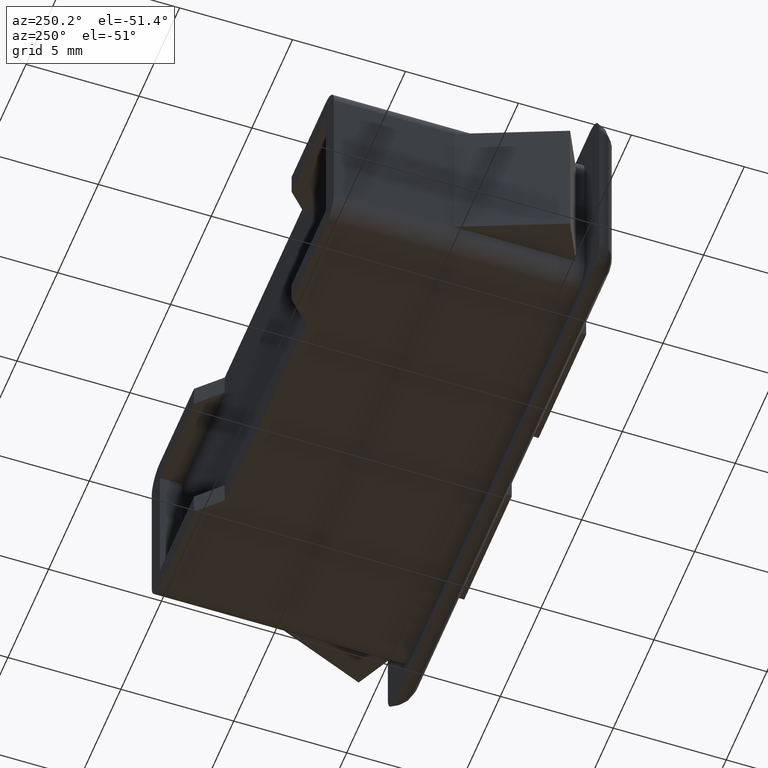
[diagram: clean part render]
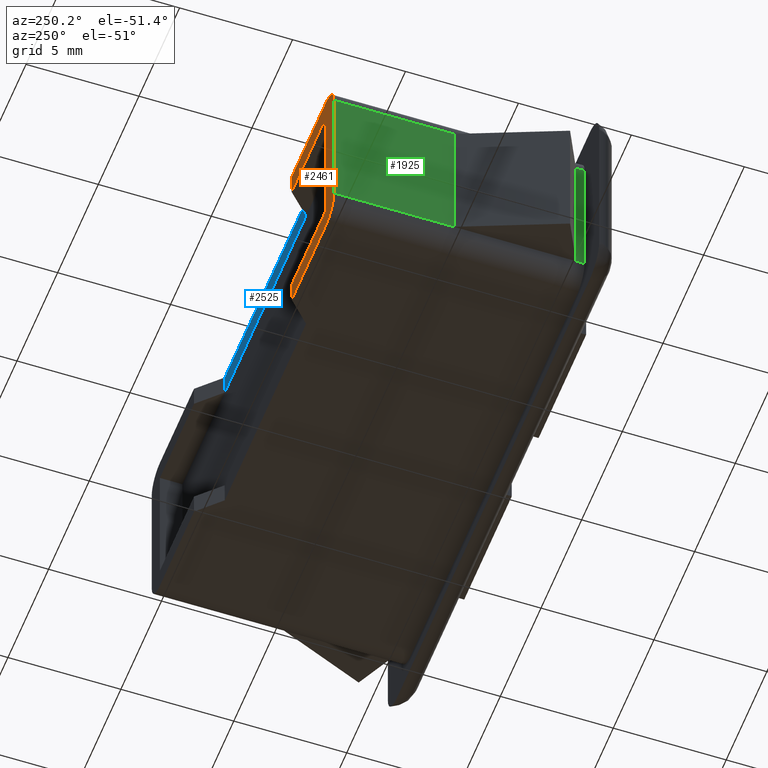
[diagram: same view with three faces highlighted in distinct colors, each labeled with its STEP entity id]
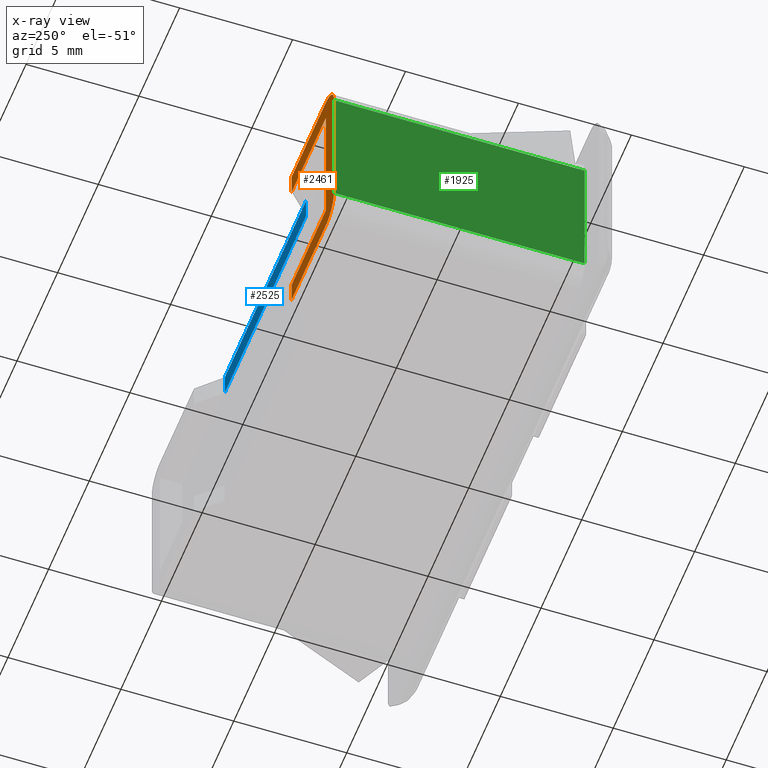
[diagram: x-ray of the same camera — body ghosted, the three highlighted faces saturated]
A machine part, auxiliary view with three faces highlighted in distinct colors.
The next image is the same camera in x-ray (body ghosted, the three faces saturated) — at least one of them is partly hidden behind the body in this view.
Their STEP definitions:

[orange] entity #2461 — the highlighted face is a freeform B-spline surface patch.
#1373=CARTESIAN_POINT('',(-11.200001000000000,0.0,-3.099999000000000));
#1374=VERTEX_POINT('',#1373);
#1380=CARTESIAN_POINT('',(-10.200001000000000,0.0,-4.099999000000000));
#1381=VERTEX_POINT('',#1380);
#1382=CARTESIAN_POINT('',(-10.200001000000000,0.0,-4.099999000000000));
#1383=CARTESIAN_POINT('',(-11.200001000000004,0.0,-4.099999000000000));
#1384=CARTESIAN_POINT('',(-11.200001000000000,0.0,-3.099999000000000));
#1392=(BOUNDED_CURVE()B_SPLINE_CURVE(2,(#1382,#1383,#1384),.UNSPECIFIED.,.F.,.U.)CURVE()GEOMETRIC_REPRESENTATION_ITEM()QUASI_UNIFORM_CURVE()RATIONAL_B_SPLINE_CURVE((1.0,0.707106781186548,1.0))REPRESENTATION_ITEM(''));
#1393=EDGE_CURVE('',#1381,#1374,#1392,.T.);
#1434=CARTESIAN_POINT('',(-10.200001000000000,0.0,4.100006000000045));
#1435=VERTEX_POINT('',#1434);
#1441=CARTESIAN_POINT('',(-11.200001000000000,0.0,3.100006000000045));
#1442=VERTEX_POINT('',#1441);
#1443=CARTESIAN_POINT('',(-11.200001000000000,0.0,3.100006000000045));
#1444=CARTESIAN_POINT('',(-11.200001000000004,0.0,4.100006000000045));
#1445=CARTESIAN_POINT('',(-10.200001000000000,0.0,4.100006000000045));
#1453=(BOUNDED_CURVE()B_SPLINE_CURVE(2,(#1443,#1444,#1445),.UNSPECIFIED.,.F.,.U.)CURVE()GEOMETRIC_REPRESENTATION_ITEM()QUASI_UNIFORM_CURVE()RATIONAL_B_SPLINE_CURVE((1.0,0.707106781186548,1.0))REPRESENTATION_ITEM(''));
#1454=EDGE_CURVE('',#1442,#1435,#1453,.T.);
#1591=CARTESIAN_POINT('',(-10.199997000000099,0.0,3.099998000000000));
#1592=VERTEX_POINT('',#1591);
#1593=CARTESIAN_POINT('',(-10.199997000000099,0.0,-3.099999000000000));
#1594=VERTEX_POINT('',#1593);
#1595=CARTESIAN_POINT('',(-10.199997000000099,0.0,3.099998000000000));
#1596=CARTESIAN_POINT('',(-10.199997000000099,0.0,-3.099999000000000));
#1597=QUASI_UNIFORM_CURVE('',1,(#1595,#1596),.UNSPECIFIED.,.F.,.U.);
#1598=EDGE_CURVE('',#1592,#1594,#1597,.T.);
#1679=CARTESIAN_POINT('',(-6.000004000000000,0.0,-3.099999000000000));
#1680=VERTEX_POINT('',#1679);
#1686=CARTESIAN_POINT('',(-10.199997000000099,0.0,-3.099999000000000));
#1687=CARTESIAN_POINT('',(-6.000004000000000,0.0,-3.099999000000000));
#1688=QUASI_UNIFORM_CURVE('',1,(#1686,#1687),.UNSPECIFIED.,.F.,.U.);
#1689=EDGE_CURVE('',#1594,#1680,#1688,.T.);
#1732=CARTESIAN_POINT('',(-6.000004000000000,0.0,3.099998000000000));
#1733=VERTEX_POINT('',#1732);
#1734=CARTESIAN_POINT('',(-10.199997000000099,0.0,3.099998000000000));
#1735=CARTESIAN_POINT('',(-6.000004000000000,0.0,3.099998000000000));
#1736=QUASI_UNIFORM_CURVE('',1,(#1734,#1735),.UNSPECIFIED.,.F.,.U.);
#1737=EDGE_CURVE('',#1592,#1733,#1736,.T.);
#1917=CARTESIAN_POINT('',(-11.200001000000000,0.0,-3.099999000000000));
#1918=CARTESIAN_POINT('',(-11.200001000000000,0.0,3.100006000000045));
#1919=QUASI_UNIFORM_CURVE('',1,(#1917,#1918),.UNSPECIFIED.,.F.,.U.);
#1920=EDGE_CURVE('',#1374,#1442,#1919,.T.);
#1945=CARTESIAN_POINT('',(-6.000004000000000,0.0,-4.099999000000000));
#1946=VERTEX_POINT('',#1945);
#1947=CARTESIAN_POINT('',(-10.200001000000000,0.0,-4.099999000000000));
#1948=CARTESIAN_POINT('',(-6.000004000000000,0.0,-4.099999000000000));
#1949=QUASI_UNIFORM_CURVE('',1,(#1947,#1948),.UNSPECIFIED.,.F.,.U.);
#1950=EDGE_CURVE('',#1381,#1946,#1949,.T.);
#2006=CARTESIAN_POINT('',(-6.000004000000000,0.0,4.100006000000045));
#2007=VERTEX_POINT('',#2006);
#2013=CARTESIAN_POINT('',(-10.200001000000000,0.0,4.100006000000045));
#2014=CARTESIAN_POINT('',(-6.000004000000000,0.0,4.100006000000045));
#2015=QUASI_UNIFORM_CURVE('',1,(#2013,#2014),.UNSPECIFIED.,.F.,.U.);
#2016=EDGE_CURVE('',#1435,#2007,#2015,.T.);
#2436=CARTESIAN_POINT('',(-11.459740596002140,0.0,4.509596387808406));
#2437=CARTESIAN_POINT('',(-11.459740596002140,0.0,-4.509589461122118));
#2438=CARTESIAN_POINT('',(-5.740264032065091,0.0,4.509596387808406));
#2439=CARTESIAN_POINT('',(-5.740264032065091,0.0,-4.509589461122118));
#2440=B_SPLINE_SURFACE_WITH_KNOTS('',1,1,((#2436,#2438),(#2437,#2439)),.UNSPECIFIED.,.F.,.F.,.U.,(2,2),(2,2),(0.0,9.019185848930524),(0.0,5.719476563937049),.UNSPECIFIED.);
#2441=ORIENTED_EDGE('',*,*,#1920,.T.);
#2442=ORIENTED_EDGE('',*,*,#1454,.T.);
#2443=ORIENTED_EDGE('',*,*,#2016,.T.);
#2444=CARTESIAN_POINT('',(-6.000004000000000,0.0,3.099998000000000));
#2445=CARTESIAN_POINT('',(-6.000004000000000,0.0,4.100006000000045));
#2446=QUASI_UNIFORM_CURVE('',1,(#2444,#2445),.UNSPECIFIED.,.F.,.U.);
#2447=EDGE_CURVE('',#1733,#2007,#2446,.T.);
#2448=ORIENTED_EDGE('',*,*,#2447,.F.);
#2449=ORIENTED_EDGE('',*,*,#1737,.F.);
#2450=ORIENTED_EDGE('',*,*,#1598,.T.);
#2451=ORIENTED_EDGE('',*,*,#1689,.T.);
#2452=CARTESIAN_POINT('',(-6.000004000000000,0.0,-4.099999000000000));
#2453=CARTESIAN_POINT('',(-6.000004000000000,0.0,-3.099999000000000));
#2454=QUASI_UNIFORM_CURVE('',1,(#2452,#2453),.UNSPECIFIED.,.F.,.U.);
#2455=EDGE_CURVE('',#1946,#1680,#2454,.T.);
#2456=ORIENTED_EDGE('',*,*,#2455,.F.);
#2457=ORIENTED_EDGE('',*,*,#1950,.F.);
#2458=ORIENTED_EDGE('',*,*,#1393,.T.);
#2459=EDGE_LOOP('',(#2441,#2442,#2443,#2448,#2449,#2450,#2451,#2456,#2457,#2458));
#2460=FACE_OUTER_BOUND('',#2459,.T.);
#2461=ADVANCED_FACE('',(#2460),#2440,.F.);

[blue] entity #2525 — the highlighted face is a freeform B-spline surface patch.
#1711=CARTESIAN_POINT('',(5.0,-1.0,3.099998000000050));
#1712=VERTEX_POINT('',#1711);
#1739=CARTESIAN_POINT('',(-5.000004000000000,-1.0,3.099998000000050));
#1740=VERTEX_POINT('',#1739);
#1746=CARTESIAN_POINT('',(-5.000004000000000,-1.0,3.099998000000050));
#1747=CARTESIAN_POINT('',(5.0,-1.0,3.099998000000050));
#1748=QUASI_UNIFORM_CURVE('',1,(#1746,#1747),.UNSPECIFIED.,.F.,.U.);
#1749=EDGE_CURVE('',#1740,#1712,#1748,.T.);
#1992=CARTESIAN_POINT('',(5.0,-1.0,4.100006000000045));
#1993=VERTEX_POINT('',#1992);
#1999=CARTESIAN_POINT('',(-5.000004000000000,-1.0,4.100006000000045));
#2000=VERTEX_POINT('',#1999);
#2001=CARTESIAN_POINT('',(-5.000004000000000,-1.0,4.100006000000045));
#2002=CARTESIAN_POINT('',(5.0,-1.0,4.100006000000045));
#2003=QUASI_UNIFORM_CURVE('',1,(#2001,#2002),.UNSPECIFIED.,.F.,.U.);
#2004=EDGE_CURVE('',#2000,#1993,#2003,.T.);
#2486=CARTESIAN_POINT('',(-5.000004000000000,-1.0,3.099998000000050));
#2487=CARTESIAN_POINT('',(-5.000004000000000,-1.0,4.100006000000045));
#2488=QUASI_UNIFORM_CURVE('',1,(#2486,#2487),.UNSPECIFIED.,.F.,.U.);
#2489=EDGE_CURVE('',#1740,#2000,#2488,.T.);
#2510=CARTESIAN_POINT('',(-5.499503992672286,-1.0,4.149956510310150));
#2511=CARTESIAN_POINT('',(-5.499503992672286,-1.0,3.050047570156858));
#2512=CARTESIAN_POINT('',(5.499500439707299,-1.0,4.149956510310150));
#2513=CARTESIAN_POINT('',(5.499500439707300,-1.0,3.050047570156858));
#2514=B_SPLINE_SURFACE_WITH_KNOTS('',1,1,((#2510,#2512),(#2511,#2513)),.UNSPECIFIED.,.F.,.F.,.U.,(2,2),(2,2),(0.041708241075650,0.958291691869125),(0.0,10.999004432379589),.UNSPECIFIED.);
#2515=ORIENTED_EDGE('',*,*,#1749,.F.);
#2516=ORIENTED_EDGE('',*,*,#2489,.T.);
#2517=ORIENTED_EDGE('',*,*,#2004,.T.);
#2518=CARTESIAN_POINT('',(5.0,-1.0,3.099998000000050));
#2519=CARTESIAN_POINT('',(5.0,-1.0,4.100006000000045));
#2520=QUASI_UNIFORM_CURVE('',1,(#2518,#2519),.UNSPECIFIED.,.F.,.U.);
#2521=EDGE_CURVE('',#1712,#1993,#2520,.T.);
#2522=ORIENTED_EDGE('',*,*,#2521,.F.);
#2523=EDGE_LOOP('',(#2515,#2516,#2517,#2522));
#2524=FACE_OUTER_BOUND('',#2523,.T.);
#2525=ADVANCED_FACE('',(#2524),#2514,.F.);

[green] entity #1925 — the highlighted face is a freeform B-spline surface patch.
#1356=CARTESIAN_POINT('',(-11.200001000000000,-11.099990999999999,-3.099999000000000));
#1357=VERTEX_POINT('',#1356);
#1373=CARTESIAN_POINT('',(-11.200001000000000,0.0,-3.099999000000000));
#1374=VERTEX_POINT('',#1373);
#1375=CARTESIAN_POINT('',(-11.200001000000000,0.0,-3.099999000000000));
#1376=CARTESIAN_POINT('',(-11.200001000000000,-11.099990999999999,-3.099999000000000));
#1377=QUASI_UNIFORM_CURVE('',1,(#1375,#1376),.UNSPECIFIED.,.F.,.U.);
#1378=EDGE_CURVE('',#1374,#1357,#1377,.T.);
#1419=CARTESIAN_POINT('',(-11.200001000000000,-11.099990999999999,3.100006000000045));
#1420=VERTEX_POINT('',#1419);
#1441=CARTESIAN_POINT('',(-11.200001000000000,0.0,3.100006000000045));
#1442=VERTEX_POINT('',#1441);
#1456=CARTESIAN_POINT('',(-11.200001000000000,-11.099990999999999,3.100006000000045));
#1457=CARTESIAN_POINT('',(-11.200001000000000,0.0,3.100006000000045));
#1458=QUASI_UNIFORM_CURVE('',1,(#1456,#1457),.UNSPECIFIED.,.F.,.U.);
#1459=EDGE_CURVE('',#1420,#1442,#1458,.T.);
#1906=CARTESIAN_POINT('',(-11.200001000000000,-11.654435424737290,-3.409689179531979));
#1907=CARTESIAN_POINT('',(-11.200001000000000,0.554444821703901,-3.409689179531979));
#1908=CARTESIAN_POINT('',(-11.200001000000000,-11.654435424737290,3.409696401261481));
#1909=CARTESIAN_POINT('',(-11.200001000000000,0.554444821703901,3.409696401261481));
#1910=B_SPLINE_SURFACE_WITH_KNOTS('',1,1,((#1906,#1908),(#1907,#1909)),.UNSPECIFIED.,.F.,.F.,.U.,(2,2),(2,2),(0.0,12.208880246441190),(0.0,6.819385580793460),.UNSPECIFIED.);
#1911=CARTESIAN_POINT('',(-11.200001000000000,-11.099990999999999,-3.099999000000000));
#1912=CARTESIAN_POINT('',(-11.200001000000000,-11.099990999999999,3.100006000000045));
#1913=QUASI_UNIFORM_CURVE('',1,(#1911,#1912),.UNSPECIFIED.,.F.,.U.);
#1914=EDGE_CURVE('',#1357,#1420,#1913,.T.);
#1915=ORIENTED_EDGE('',*,*,#1914,.T.);
#1916=ORIENTED_EDGE('',*,*,#1459,.T.);
#1917=CARTESIAN_POINT('',(-11.200001000000000,0.0,-3.099999000000000));
#1918=CARTESIAN_POINT('',(-11.200001000000000,0.0,3.100006000000045));
#1919=QUASI_UNIFORM_CURVE('',1,(#1917,#1918),.UNSPECIFIED.,.F.,.U.);
#1920=EDGE_CURVE('',#1374,#1442,#1919,.T.);
#1921=ORIENTED_EDGE('',*,*,#1920,.F.);
#1922=ORIENTED_EDGE('',*,*,#1378,.T.);
#1923=EDGE_LOOP('',(#1915,#1916,#1921,#1922));
#1924=FACE_OUTER_BOUND('',#1923,.T.);
#1925=ADVANCED_FACE('',(#1924),#1910,.F.);